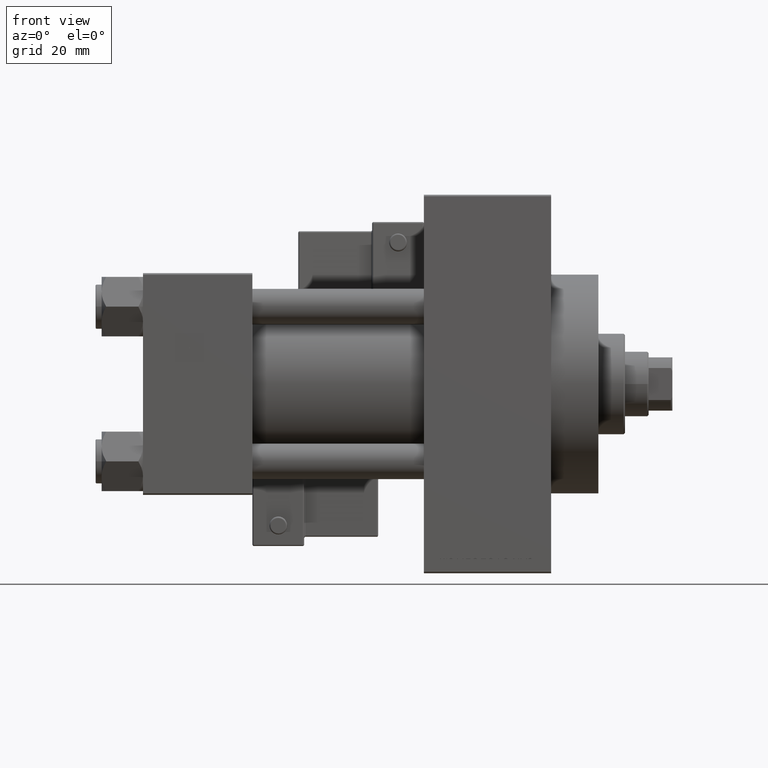
[diagram: clean part render]
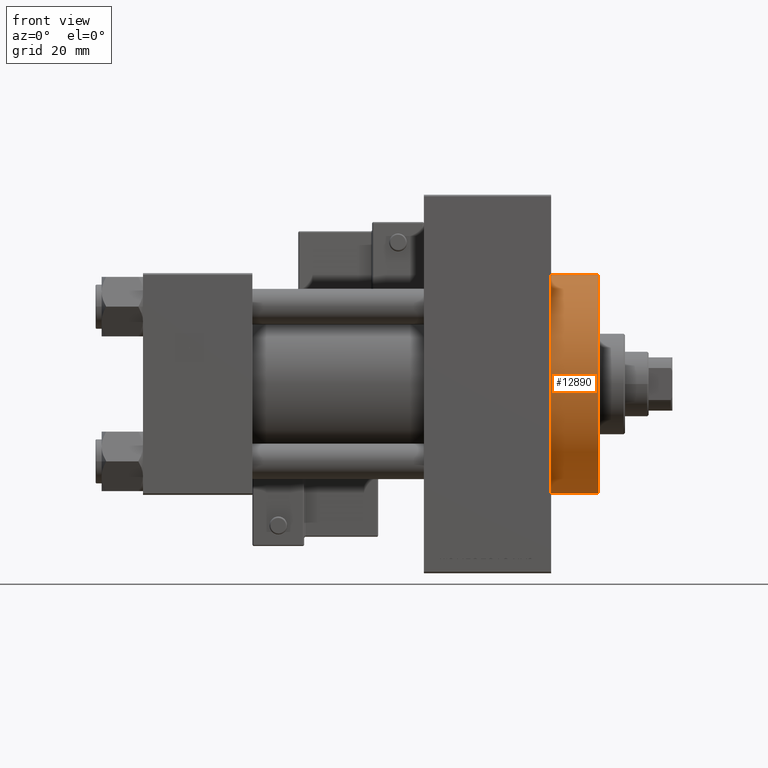
[diagram: same view with one face highlighted and labeled with its STEP entity id]
A machine part, front view. The second image highlights one B-rep face of the part: STEP entity #12890.
In plain terms, the highlighted cylindrical surface (partial cylindrical patch) has radius 37 mm, axis along (-1, -0, -0).
Its self-contained STEP definition (entity closure, byte-faithful):
#263 = DIRECTION ( 'NONE',  ( -1.000000000000000000, -0.000000000000000000, -0.000000000000000000 ) ) ;
#1462 = DIRECTION ( 'NONE',  ( 0.000000000000000000, 0.000000000000000000, 1.000000000000000000 ) ) ;
#1473 = VERTEX_POINT ( 'NONE', #43614 ) ;
#2936 = AXIS2_PLACEMENT_3D ( 'NONE', #9781, #21996, #1462 ) ;
#4162 = CARTESIAN_POINT ( 'NONE',  ( 154.0000000000000284, 4.531193156845206793E-15, -37.00000000000000000 ) ) ;
#4395 = EDGE_CURVE ( 'NONE', #50098, #32033, #48417, .T. ) ;
#5216 = ORIENTED_EDGE ( 'NONE', *, *, #50190, .F. ) ;
#6175 = EDGE_LOOP ( 'NONE', ( #5216, #44475, #9752, #47510 ) ) ;
#8538 = AXIS2_PLACEMENT_3D ( 'NONE', #49315, #41761, #25613 ) ;
#9752 = ORIENTED_EDGE ( 'NONE', *, *, #21756, .T. ) ;
#9781 = CARTESIAN_POINT ( 'NONE',  ( 154.0000000000000284, 0.000000000000000000, 0.000000000000000000 ) ) ;
#11383 = LINE ( 'NONE', #35589, #36524 ) ;
#12587 = CARTESIAN_POINT ( 'NONE',  ( 154.0000000000000284, 4.531193156845206793E-15, -37.00000000000000000 ) ) ;
#12890 = ADVANCED_FACE ( 'NONE', ( #37384 ), #21732, .T. ) ;
#20362 = EDGE_CURVE ( 'NONE', #38147, #1473, #45605, .T. ) ;
#21416 = DIRECTION ( 'NONE',  ( 0.000000000000000000, 0.000000000000000000, -1.000000000000000000 ) ) ;
#21732 = CYLINDRICAL_SURFACE ( 'NONE', #2936, 37.00000000000000000 ) ;
#21756 = EDGE_CURVE ( 'NONE', #50098, #38147, #11383, .T. ) ;
#21996 = DIRECTION ( 'NONE',  ( -1.000000000000000000, -0.000000000000000000, -0.000000000000000000 ) ) ;
#23170 = LINE ( 'NONE', #4162, #26441 ) ;
#25613 = DIRECTION ( 'NONE',  ( 0.000000000000000000, 0.000000000000000000, -1.000000000000000000 ) ) ;
#26441 = VECTOR ( 'NONE', #263, 1000.000000000000000 ) ;
#32033 = VERTEX_POINT ( 'NONE', #12587 ) ;
#35589 = CARTESIAN_POINT ( 'NONE',  ( 154.0000000000000284, 0.000000000000000000, 37.00000000000000000 ) ) ;
#35592 = AXIS2_PLACEMENT_3D ( 'NONE', #40455, #41231, #21416 ) ;
#36524 = VECTOR ( 'NONE', #43660, 1000.000000000000000 ) ;
#37384 = FACE_OUTER_BOUND ( 'NONE', #6175, .T. ) ;
#38147 = VERTEX_POINT ( 'NONE', #48154 ) ;
#40455 = CARTESIAN_POINT ( 'NONE',  ( 138.0000000000000000, 0.000000000000000000, 0.000000000000000000 ) ) ;
#41231 = DIRECTION ( 'NONE',  ( 1.000000000000000000, 0.000000000000000000, 0.000000000000000000 ) ) ;
#41761 = DIRECTION ( 'NONE',  ( 1.000000000000000000, 0.000000000000000000, 0.000000000000000000 ) ) ;
#42470 = CARTESIAN_POINT ( 'NONE',  ( 154.0000000000000284, 0.000000000000000000, 37.00000000000000000 ) ) ;
#43614 = CARTESIAN_POINT ( 'NONE',  ( 138.0000000000000000, 4.531193156845206793E-15, -37.00000000000000000 ) ) ;
#43660 = DIRECTION ( 'NONE',  ( -1.000000000000000000, -0.000000000000000000, -0.000000000000000000 ) ) ;
#44475 = ORIENTED_EDGE ( 'NONE', *, *, #4395, .F. ) ;
#45605 = CIRCLE ( 'NONE', #35592, 37.00000000000000000 ) ;
#47510 = ORIENTED_EDGE ( 'NONE', *, *, #20362, .T. ) ;
#48154 = CARTESIAN_POINT ( 'NONE',  ( 138.0000000000000000, 0.000000000000000000, 37.00000000000000000 ) ) ;
#48417 = CIRCLE ( 'NONE', #8538, 37.00000000000000000 ) ;
#49315 = CARTESIAN_POINT ( 'NONE',  ( 154.0000000000000284, 0.000000000000000000, 0.000000000000000000 ) ) ;
#50098 = VERTEX_POINT ( 'NONE', #42470 ) ;
#50190 = EDGE_CURVE ( 'NONE', #32033, #1473, #23170, .T. ) ;